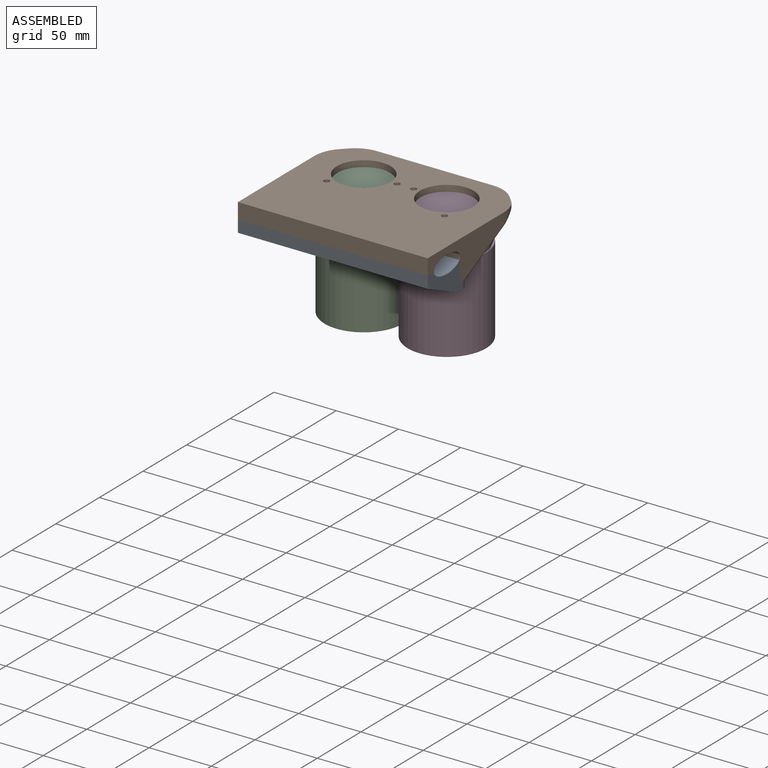
[diagram: assembled view]
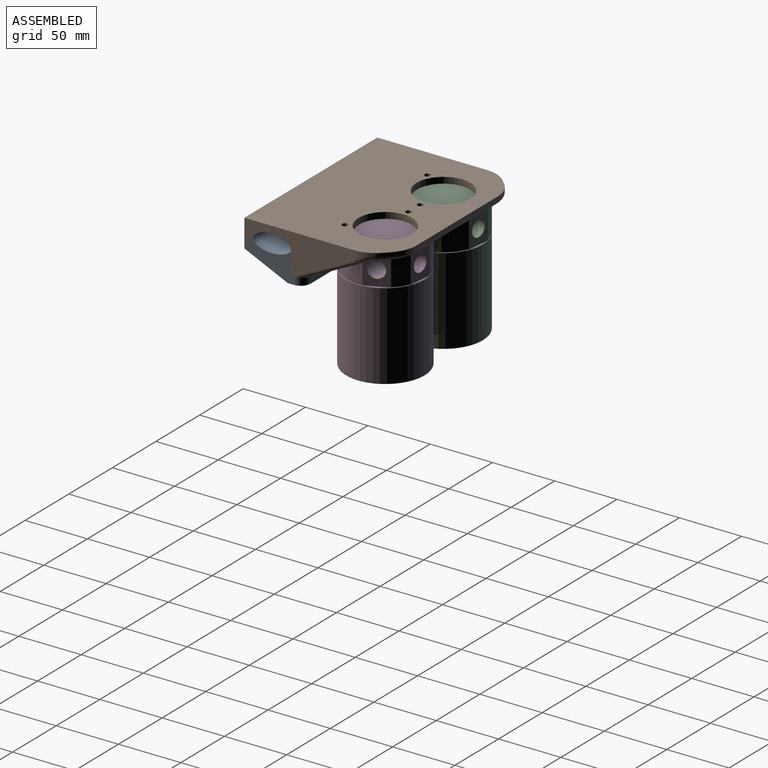
[diagram: assembled view, second angle]
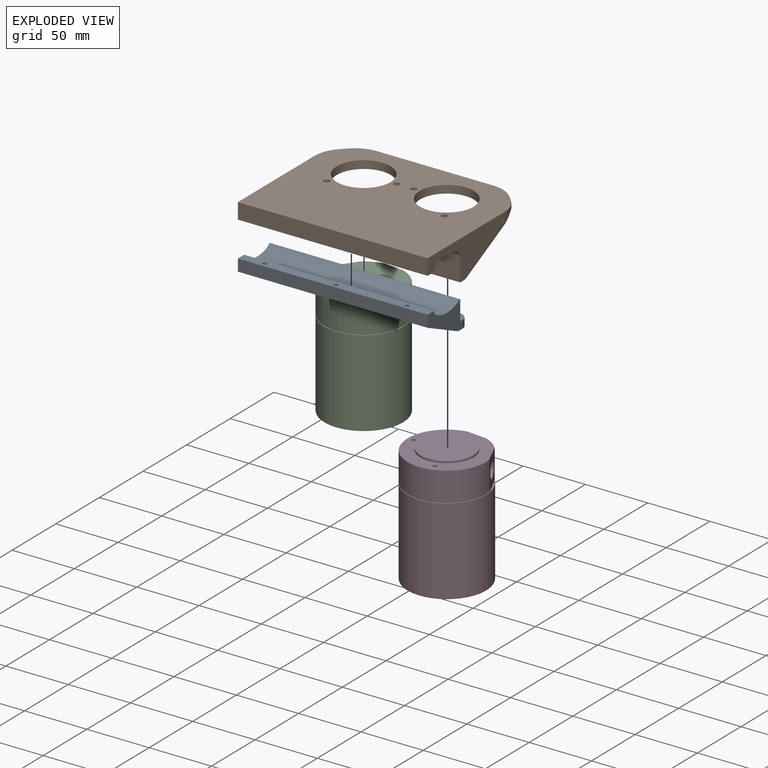
[diagram: exploded view]
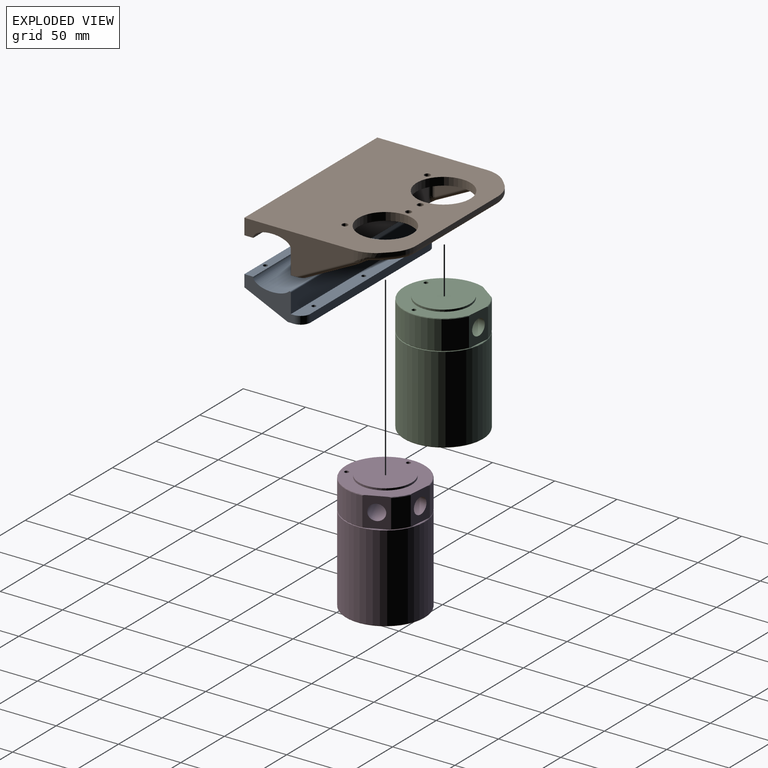
[diagram: exploded view, second angle]
ASSEMBLY  parts=4 mates=8
PART A: 31 faces, bbox 152.4x47.6x25.4 mm
  f0: cylinder r=1.71mm len=9.53mm, axis (0,0,1), area 102.6mm2, adj f6,f24
  f1: cylinder r=1.71mm len=9.53mm, axis (0,0,1), area 102.6mm2, adj f6,f20
  f2: cylinder r=1.71mm len=9.53mm, axis (0,0,1), area 102.6mm2, adj f6,f16
  f3: plane 152.4x12.7mm, normal (0,0,-1), area 1880.8mm2, adj f4,f5,f8,f12,f14,f15,f28,f29
  f4: plane 39.7x25.4mm, normal (1,0,0), area 517.3mm2, adj f3,f6,f7,f9,f10,f11,f12,f13
  f5: plane 39.7x25.4mm, normal (-1,0,0), area 517.3mm2, adj f3,f6,f7,f9,f10,f11,f12,f13
  f6: plane 152.4x7.16mm, normal (0,0,1), area 1063.9mm2, adj f0,f1,f2,f4,f5,f7,f11
  f7: plane 152.4x9.53mm, normal (0,-1,0), area 1451.6mm2, adj f4,f5,f6,f12,f16,f20,f24
  f8: plane 136.55x6.35mm, normal (0,1,0), area 867.1mm2, adj f3,f10,f14,f15
  f9: plane 152.4x15.58mm, normal (0,1,0), area 2374.1mm2, adj f4,f5,f10,f13
  f10: plane 152.4x10.31mm, normal (0,0,1), area 1517mm2, adj f4,f5,f8,f9,f14,f15,f28,f29
  f11: extruded ~152.4x28.8mm, area 4970.8mm2, adj f4,f5,f6,f13
  f12: plane 152.4x34.93mm, normal (0,-0.41,-0.91), area 5719.5mm2, adj f3,f4,f5,f7,f17,f18,f19,f21
  f13: cylinder r=0.79mm len=152.4mm, axis (-1,0,0), area 284.5mm2, adj f4,f5,f9,f11
  f14: cylinder r=7.92mm len=7.93mm, axis (0,0,1), area 79mm2, adj f3,f4,f8,f10
  f15: cylinder r=7.92mm len=7.93mm, axis (0,0,-1), area 79mm2, adj f3,f5,f8,f10
  f16: plane 6.76x6.35mm, normal (0,0,-1), area 29.3mm2, adj f2,f7,f17,f18,f19
  f17: plane 3.58x1.63mm, normal (-1,0,0), area 2.9mm2, adj f12,f16,f19
  f18: plane 3.58x1.63mm, normal (1,0,0), area 2.9mm2, adj f12,f16,f19
  f19: cylinder r=3.17mm len=6.35mm, axis (0,0,1), area 25.4mm2, adj f12,f16,f17,f18
  f20: plane 6.76x6.35mm, normal (0,0,-1), area 29.3mm2, adj f1,f7,f21,f22,f23
  f21: plane 3.58x1.63mm, normal (-1,0,0), area 2.9mm2, adj f12,f20,f23
  f22: plane 3.58x1.63mm, normal (1,0,0), area 2.9mm2, adj f12,f20,f23
  f23: cylinder r=3.17mm len=6.35mm, axis (0,0,1), area 25.4mm2, adj f12,f20,f21,f22
  f24: plane 6.76x6.35mm, normal (0,0,-1), area 29.3mm2, adj f0,f7,f25,f26,f27
  f25: plane 3.58x1.63mm, normal (-1,0,0), area 2.9mm2, adj f12,f24,f27
  f26: plane 3.58x1.63mm, normal (1,0,0), area 2.9mm2, adj f12,f24,f27
  f27: cylinder r=3.17mm len=6.35mm, axis (0,0,1), area 25.4mm2, adj f12,f24,f25,f26
  f28: cylinder r=1.71mm len=6.35mm, axis (0,0,-1), area 68.4mm2, adj f3,f10
  f29: cylinder r=1.71mm len=6.35mm, axis (0,0,-1), area 68.4mm2, adj f3,f10
  f30: cylinder r=1.71mm len=6.35mm, axis (0,0,-1), area 68.4mm2, adj f3,f10
PART B: 61 faces, bbox 153.5x120.3x35.3 mm
  f0: bspline ~30.32x13.3mm, area 80.1mm2, adj f26,f30,f34,f42
  f1: bspline ~29.81x13.41mm, area 80.1mm2, adj f27,f29,f32,f48
  f2: plane 152.4x10.33mm, normal (0,0,-1), area 1548.7mm2, adj f3,f4,f6,f17,f19,f24,f29,f30
  f3: plane 87.9x31.75mm, normal (-1,0,0), area 1352mm2, adj f2,f10,f21,f22,f23,f24,f27,f29
  f4: plane 87.9x31.75mm, normal (1,0,0), area 1352mm2, adj f2,f10,f21,f22,f23,f24,f26,f30
  f5: plane 141.84x64.21mm, normal (0,0,-1), area 5380.8mm2, adj f8,f9,f11,f12,f13,f14,f31,f32
  f6: plane 137.28x22.23mm, normal (0,-1,0), area 2970mm2, adj f2,f35,f36,f38,f40,f41
  f7: plane 93.26x3.18mm, normal (0,-1,0), area 296.1mm2, adj f10,f25,f28,f45
  f8: cylinder r=21.59mm len=43.18mm, axis (0,0,-1), area 861.4mm2, adj f5,f10
  f9: cylinder r=21.59mm len=43.18mm, axis (0,0,-1), area 861.4mm2, adj f5,f10
  f10: plane 152.4x117.48mm, normal (0,0,1), area 14485.1mm2, adj f3,f4,f7,f8,f9,f11,f12,f13
  f11: cylinder r=2.37mm len=6.35mm, axis (0,0,1), area 94.8mm2, adj f5,f10
  f12: cylinder r=2.37mm len=6.35mm, axis (0,0,1), area 94.8mm2, adj f5,f10
  f13: cylinder r=2.37mm len=6.35mm, axis (0,0,1), area 94.8mm2, adj f5,f10
  f14: cylinder r=2.37mm len=6.35mm, axis (0,0,1), area 94.8mm2, adj f5,f10
  f15: plane 4.17x4.17mm, normal (-0.71,-0.71,0), area 18.7mm2, adj f10,f27,f28,f47
  f16: plane 4.17x4.17mm, normal (0.71,-0.71,0), area 18.7mm2, adj f10,f25,f26,f43
  f17: plane 5.12x2.49mm, normal (0,-0.45,-0.89), area 2.7mm2, adj f2,f30,f35
  f18: plane 34.18x17.09mm, normal (-1,0,0), area 292mm2, adj f30,f33,f36
  f19: plane 5.12x2.49mm, normal (0,-0.45,-0.89), area 2.7mm2, adj f2,f29,f41
  f20: plane 34.18x17.09mm, normal (1,0,0), area 292mm2, adj f29,f31,f40
  f21: plane 152.4x12.7mm, normal (0,1,0), area 1935.5mm2, adj f3,f4,f10,f23
  f22: extruded ~152.4x30.15mm, area 5474.2mm2, adj f3,f4,f23,f24
  f23: plane 152.4x7.15mm, normal (0,0,-1), area 1074.5mm2, adj f3,f4,f21,f22,f49,f51,f53
  f24: plane 152.4x19.05mm, normal (0,1,0), area 2903.2mm2, adj f2,f3,f4,f22
  f25: cylinder r=25.4mm len=17.96mm, axis (0,0,-1), area 63.3mm2, adj f7,f10,f16,f44
  f26: cylinder r=25.4mm len=17.96mm, axis (0,0,-1), area 92.8mm2, adj f0,f4,f10,f16,f42
  f27: cylinder r=25.4mm len=17.96mm, axis (0,0,1), area 92.8mm2, adj f1,f3,f10,f15,f48
  f28: cylinder r=25.4mm len=17.96mm, axis (0,0,-1), area 63.3mm2, adj f7,f10,f15,f46
  f29: cylinder r=3.17mm len=48.8mm, axis (0,0.89,-0.45), area 457.5mm2, adj f1,f2,f3,f19,f20,f32,f41
  f30: cylinder r=3.17mm len=48.8mm, axis (0,-0.89,0.45), area 457.5mm2, adj f0,f2,f4,f17,f18,f34,f35
  f31: cylinder r=3.17mm len=34.18mm, axis (0,1,0), area 170.4mm2, adj f5,f20,f32,f39
  f32: bspline ~13.09x5.12mm, area 33.8mm2, adj f1,f5,f29,f31
  f33: cylinder r=3.17mm len=34.18mm, axis (0,1,0), area 170.4mm2, adj f5,f18,f34,f37
  f34: bspline ~13.09x5.12mm, area 33.8mm2, adj f0,f5,f30,f33
  f35: bspline ~7.45x7.41mm, area 24.9mm2, adj f6,f17,f30,f36
  f36: cylinder r=3.17mm len=17.09mm, axis (0,0,-1), area 85.2mm2, adj f6,f18,f35,f37
  f37: sphere r=3.17mm, area 21.6mm2, adj f33,f36,f38
  f38: cylinder r=3.17mm len=133.35mm, axis (1,0,0), area 665.1mm2, adj f5,f6,f37,f39
  f39: sphere r=3.17mm, area 10.1mm2, adj f31,f38,f40
  f40: cylinder r=3.17mm len=17.09mm, axis (0,0,-1), area 85.2mm2, adj f6,f20,f39,f41
  f41: bspline ~8.33x6.35mm, area 24.9mm2, adj f6,f19,f29,f40
  f42: torus R=22.23mm, axis (0,0,1), area 37.5mm2, adj f0,f5,f26,f43
  f43: cylinder r=3.17mm len=6.42mm, axis (0.71,0.71,0), area 29.4mm2, adj f5,f16,f42,f44
  f44: torus R=22.23mm, axis (0,0,1), area 95mm2, adj f5,f25,f43,f45
  f45: cylinder r=3.17mm len=93.26mm, axis (1,0,0), area 465.1mm2, adj f5,f7,f44,f46
  f46: torus R=22.23mm, axis (0,0,1), area 95mm2, adj f5,f28,f45,f47
  f47: cylinder r=3.17mm len=6.42mm, axis (-0.71,0.71,0), area 29.4mm2, adj f5,f15,f46,f48
  f48: torus R=22.23mm, axis (0,0,1), area 37.5mm2, adj f1,f5,f27,f47
  f49: cylinder r=1.27mm len=9.53mm, axis (0,0,-1), area 76mm2, adj f23,f50
  f50: plane 2.54x2.54mm, normal (0,0,-1), area 5.1mm2, adj f49
  f51: cylinder r=1.27mm len=9.53mm, axis (0,0,-1), area 76mm2, adj f23,f52
  f52: plane 2.54x2.54mm, normal (0,0,-1), area 5.1mm2, adj f51
  f53: cylinder r=1.27mm len=9.53mm, axis (0,0,-1), area 76mm2, adj f23,f54
  f54: plane 2.54x2.54mm, normal (0,0,-1), area 5.1mm2, adj f53
  f55: cylinder r=1.27mm len=9.53mm, axis (0,0,-1), area 76mm2, adj f2,f56
  f56: plane 2.54x2.54mm, normal (0,0,-1), area 5.1mm2, adj f55
  f57: cylinder r=1.27mm len=9.53mm, axis (0,0,-1), area 76mm2, adj f2,f58
  f58: plane 2.54x2.54mm, normal (0,0,-1), area 5.1mm2, adj f57
  f59: cylinder r=1.27mm len=9.53mm, axis (0,0,-1), area 76mm2, adj f2,f60
  f60: plane 2.54x2.54mm, normal (0,0,-1), area 5.1mm2, adj f59
PART C: 26 faces, bbox 69.2x69.2x95.9 mm
  f0: cylinder r=31.75mm len=22.78mm, axis (0,0,-1), area 313.8mm2, adj f8,f11,f17,f21
  f1: cylinder r=31.75mm len=63.5mm, axis (0,0,-1), area 3338.8mm2, adj f8,f11,f16,f20
  f2: cylinder r=6.35mm len=25.4mm, axis (0,1,0), area 955.3mm2, adj f3,f4,f8,f18,f19
  f3: cylinder r=6.35mm len=0.07mm, axis (0,1,0), area 0mm2, adj f2,f4,f19
  f4: plane 12.7x9.16mm, normal (0,1,0), area 97.9mm2, adj f2,f3,f19
  f5: plane 62.23x61.37mm, normal (0,0,1), area 1588.3mm2, adj f6,f8,f11,f12,f14,f16,f17
  f6: cylinder r=21.25mm len=42.49mm, axis (0,0,-1), area 210.2mm2, adj f5,f7
  f7: plane 42.49x42.49mm, normal (0,0,1), area 1418.2mm2, adj f6
  f8: plane 24.24x19.72mm, normal (0,1,0), area 331.1mm2, adj f0,f1,f2,f5,f9,f16,f17,f20
  f9: plane 16.6x1.12mm, normal (0,0,1), area 12.4mm2, adj f8,f22
  f10: plane 14.4x8.25mm, normal (0,0,1), area 12.4mm2, adj f11,f22
  f11: plane 24.24x17.17mm, normal (-0.87,0.5,0), area 331mm2, adj f0,f1,f5,f10,f16,f17,f18,f20
  f12: cylinder r=1.7mm len=12.7mm, axis (0,0,1), area 135.8mm2, adj f5,f13
  f13: plane 3.4x3.4mm, normal (0,0,1), area 9.1mm2, adj f12
  f14: cylinder r=1.7mm len=12.7mm, axis (0,0,1), area 135.8mm2, adj f5,f15
  f15: plane 3.4x3.4mm, normal (0,0,1), area 9.1mm2, adj f14
  f16: torus R=31.12mm, axis (0,0,1), area 147.4mm2, adj f1,f5,f8,f11
  f17: torus R=31.12mm, axis (0,0,1), area 15.9mm2, adj f0,f5,f8,f11
  f18: cylinder r=6.35mm len=28.35mm, axis (-0.87,0.5,0), area 956.3mm2, adj f2,f11,f19
  f19: plane 12.7x7.92mm, normal (-0.87,0.5,0), area 96.5mm2, adj f2,f3,f4,f18
  f20: cone r=31.75mm half-angle=45deg, axis (0,0,1), area 79.2mm2, adj f1,f8,f11,f22
  f21: cone r=31.75mm half-angle=45deg, axis (0,0,1), area 8.1mm2, adj f0,f8,f11,f22
  f22: cone r=31.37mm half-angle=45deg, axis (0,0,-1), area 106.8mm2, adj f9,f10,f20,f21,f25
  f23: plane 62.23x62.23mm, normal (0,0,-1), area 3041.5mm2, adj f24
  f24: torus R=31.12mm, axis (0,0,1), area 197.5mm2, adj f23,f25
  f25: cylinder r=31.75mm len=69.04mm, axis (0,0,-1), area 13772.3mm2, adj f22,f24
PART D: same geometry as C
PLACE A t=(37.84,-127.49,-151.63)mm
PLACE B rot(axis=(0,0,1),180deg) t=(-38.36,-44.3,-119.88)mm fixed
PLACE C rot(axis=(0,0,-1),5.6deg) t=(-71.73,-44.3,-213.73)mm
PLACE D rot(axis=(0,0,-1),65.8deg) t=(-5.03,-44.3,-213.73)mm
MATE planar A.f6 <-> B.f51  axis (0,0,1) through (-114.56,-127.49,-126.23)mm
MATE parallel D.f11 <-> C.f2  axis (0.1,1,0) through (-2.11,-14.19,-131.78)mm
MATE planar D.f10 <-> C.f9  axis (0,0,1) through (-2.02,-13.75,-143.68)mm
MATE cylindrical B.f9 <-> C.f0  axis (0,0,-1) through (-71.73,-44.3,-113.53)mm
MATE planar A.f5 <-> B.f4  axis (-1,0,0) through (-114.56,-105.69,-138.4)mm
MATE planar C.f5 <-> B.f5  axis (0,0,1) through (-71.68,-44.39,-119.88)mm
MATE cylindrical D.f0 <-> B.f8  axis (0,0,-1) through (-5.03,-44.3,-119.09)mm
MATE planar A.f7 <-> B.f21  axis (0,-1,0) through (-38.36,-127.49,-130.99)mm
